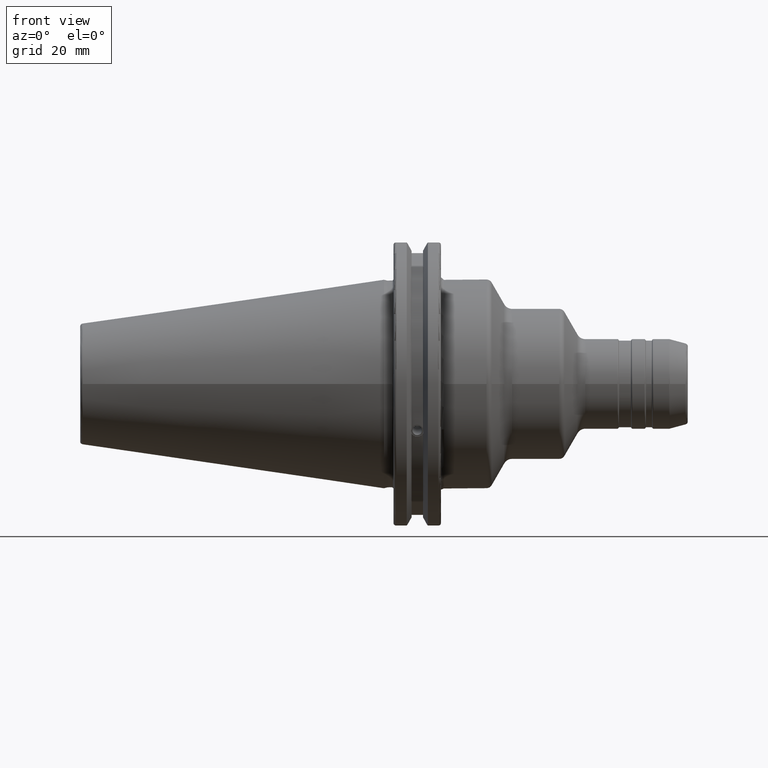
[diagram: clean part render]
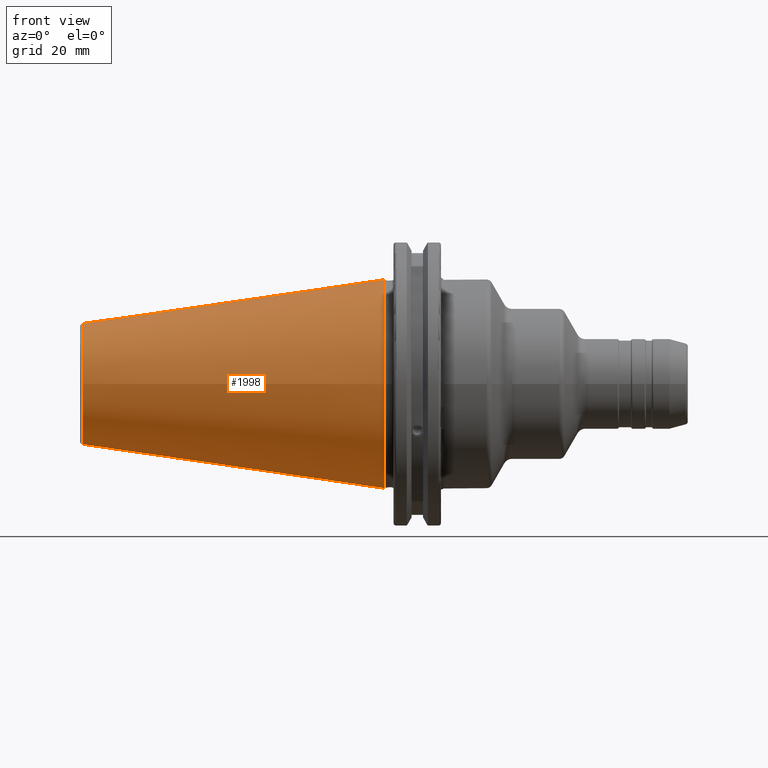
[diagram: same view with one face highlighted and labeled with its STEP entity id]
A machine part, front view. The second image highlights one B-rep face of the part: STEP entity #1998.
In plain terms, the highlighted conical surface has half-angle 8.297 deg.
Its self-contained STEP definition (entity closure, byte-faithful):
#164=CONICAL_SURFACE('',#2262,27.5166666666666,0.14481249823894);
#253=FACE_OUTER_BOUND('',#382,.T.);
#382=EDGE_LOOP('',(#1746,#1747,#1748,#1749,#1750));
#500=LINE('',#3945,#607);
#607=VECTOR('',#2820,27.5166666666666);
#749=CIRCLE('',#2256,20.233121911427);
#750=CIRCLE('',#2257,20.233121911427);
#754=CIRCLE('',#2263,34.925);
#954=VERTEX_POINT('',#3932);
#955=VERTEX_POINT('',#3933);
#958=VERTEX_POINT('',#3943);
#1234=EDGE_CURVE('',#954,#955,#749,.T.);
#1235=EDGE_CURVE('',#955,#954,#750,.T.);
#1239=EDGE_CURVE('',#958,#958,#754,.T.);
#1240=EDGE_CURVE('',#958,#955,#500,.T.);
#1746=ORIENTED_EDGE('',*,*,#1239,.F.);
#1747=ORIENTED_EDGE('',*,*,#1240,.T.);
#1748=ORIENTED_EDGE('',*,*,#1234,.F.);
#1749=ORIENTED_EDGE('',*,*,#1235,.F.);
#1750=ORIENTED_EDGE('',*,*,#1240,.F.);
#1998=ADVANCED_FACE('',(#253),#164,.T.);
#2256=AXIS2_PLACEMENT_3D('',#3934,#2804,#2805);
#2257=AXIS2_PLACEMENT_3D('',#3935,#2806,#2807);
#2262=AXIS2_PLACEMENT_3D('',#3942,#2816,#2817);
#2263=AXIS2_PLACEMENT_3D('',#3944,#2818,#2819);
#2804=DIRECTION('center_axis',(-1.,0.,0.));
#2805=DIRECTION('ref_axis',(0.,-1.,3.06161699786838E-17));
#2806=DIRECTION('center_axis',(-1.,0.,0.));
#2807=DIRECTION('ref_axis',(0.,-1.,3.06161699786838E-17));
#2816=DIRECTION('center_axis',(1.,0.,0.));
#2817=DIRECTION('ref_axis',(0.,1.,0.));
#2818=DIRECTION('center_axis',(1.,0.,0.));
#2819=DIRECTION('ref_axis',(0.,0.,-1.));
#2820=DIRECTION('',(-0.989532981063281,0.144306893071729,1.76724974695192E-17));
#3932=CARTESIAN_POINT('',(-100.744306893072,-2.47784279855872E-15,20.233121911427));
#3933=CARTESIAN_POINT('',(-100.744306893072,-20.233121911427,-2.47784279855872E-15));
#3934=CARTESIAN_POINT('Origin',(-100.744306893072,0.,-3.09730349819841E-15));
#3935=CARTESIAN_POINT('Origin',(-100.744306893072,0.,-3.09730349819841E-15));
#3942=CARTESIAN_POINT('Origin',(-50.8,0.,0.));
#3943=CARTESIAN_POINT('',(-8.88178419700125E-15,-34.925,-4.27707894602213E-15));
#3944=CARTESIAN_POINT('Origin',(0.,0.,0.));
#3945=CARTESIAN_POINT('',(-50.8,-27.5166666666666,-3.3698197756538E-15));